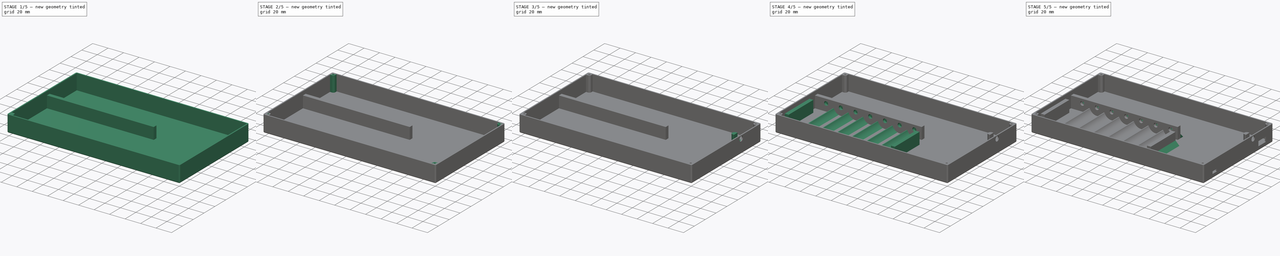
[diagram: build sequence overview — one tinted view per stage of 5, left to right]
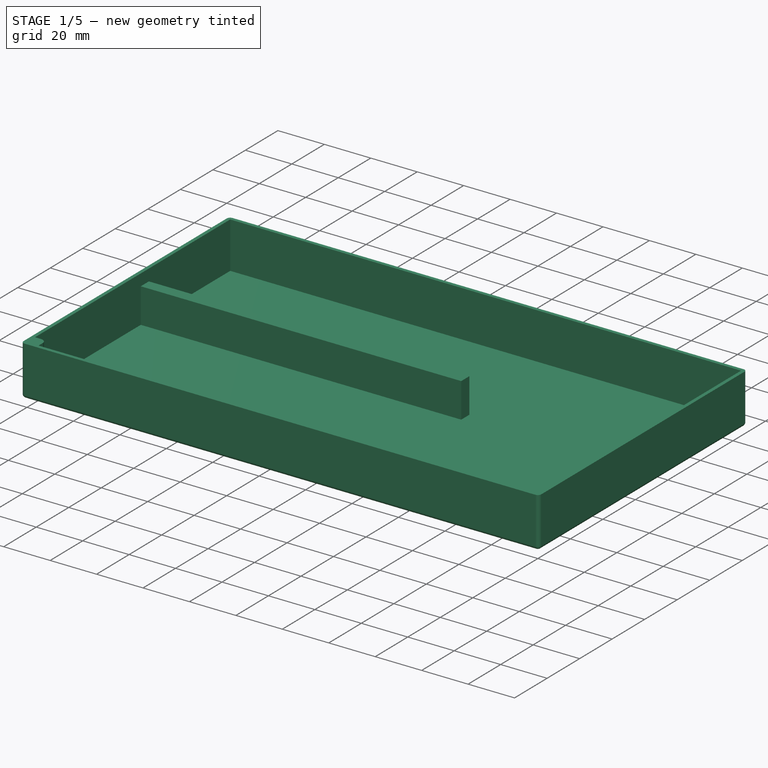
[diagram: stage 1 of 5 — iso view after this stage's code; geometry added in this stage tinted green]
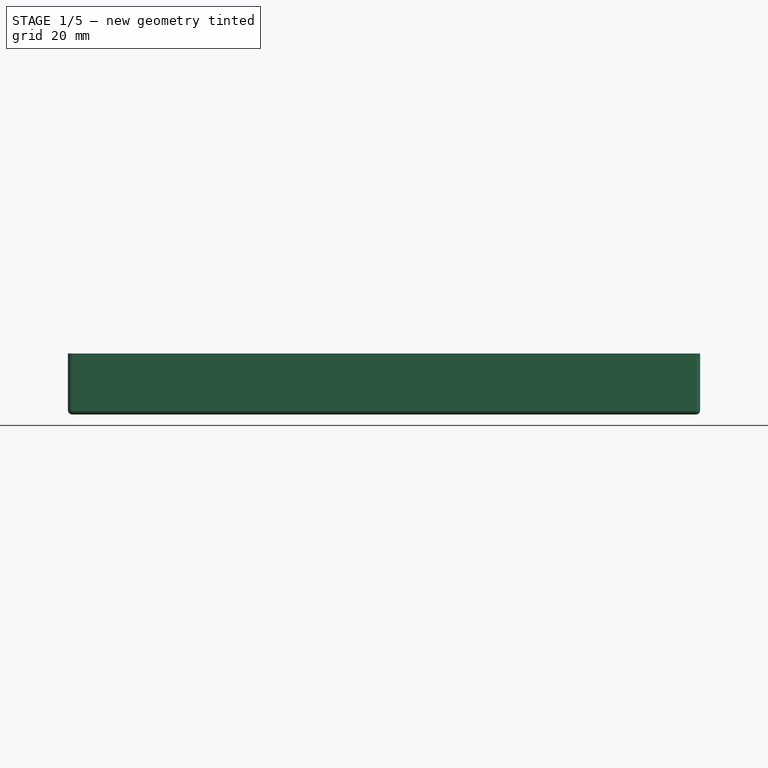
[diagram: stage 1 of 5 — front view after this stage's code; geometry added in this stage tinted green]
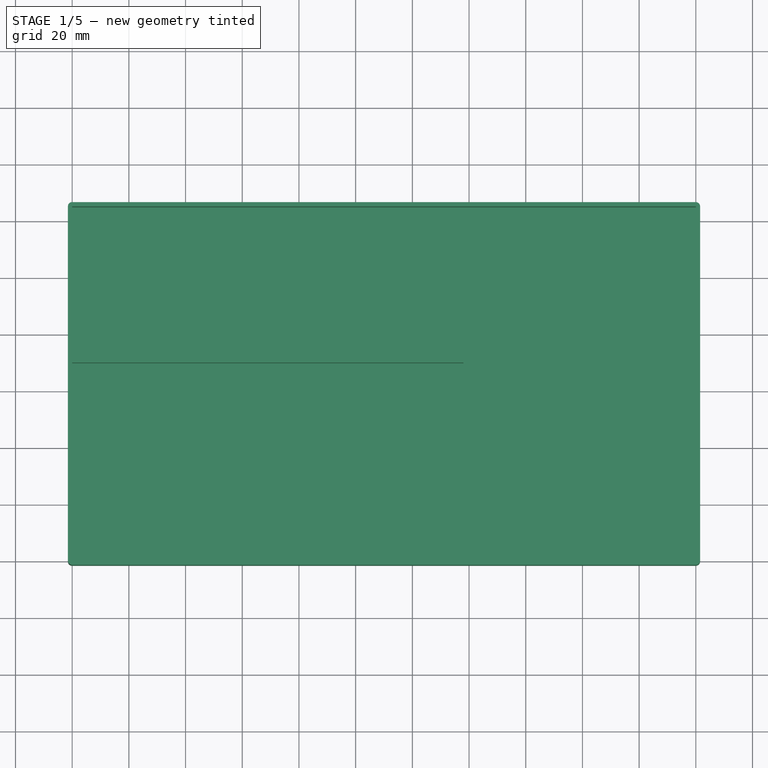
[diagram: stage 1 of 5 — top view after this stage's code; geometry added in this stage tinted green]
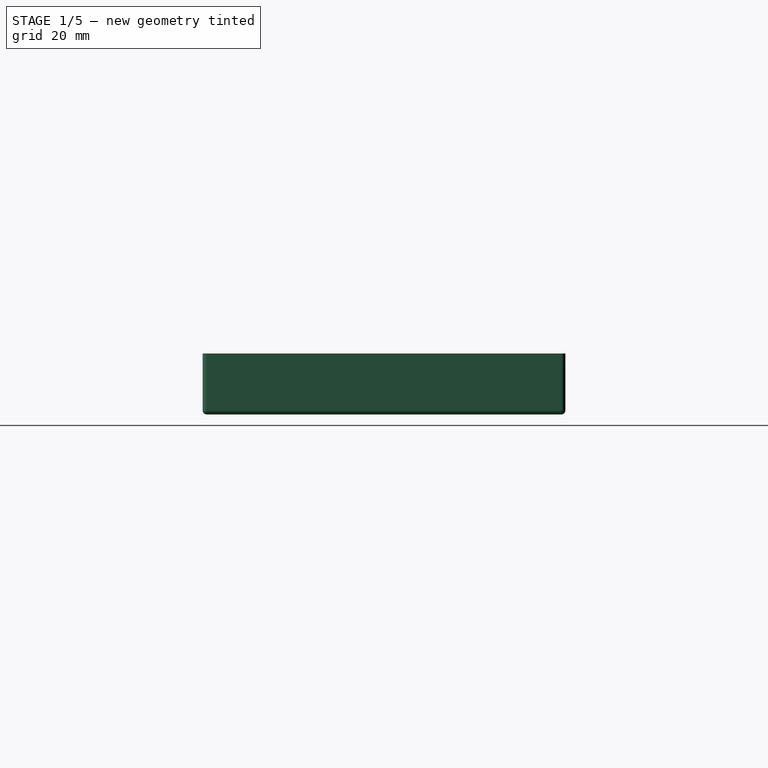
[diagram: stage 1 of 5 — right view after this stage's code; geometry added in this stage tinted green]
FCSTD DOCUMENT  (FreeCAD 0.17R10476 (Git))
Label: EPIC_bottom
License: All rights reserved
LicenseURL: http://en.wikipedia.org/wiki/All_rights_reserved
objects: Sketcher::SketchObject×22, PartDesign::Pad×15, PartDesign::Pocket×7, PartDesign::LinearPattern×7, PartDesign::MultiTransform×2, PartDesign::Chamfer×2, PartDesign::Fillet×1, PartDesign::Body×1
note: 79 computed .brp shape members not serialized (recipe doc carries the construction recipe); baked Part::Feature solids carry a one-line shape summary decoded from their .brp

FEATURE [Sketcher::SketchObject] Sketch
  MapMode = 5
  Support = -> [XY_Plane]
  sketch-geometry (12):
    g0: LineSegment StartX=0 StartY=0 StartZ=0 EndX=220 EndY=0 EndZ=0
    g1: LineSegment StartX=220 StartY=0 StartZ=0 EndX=220 EndY=125 EndZ=0
    g2: LineSegment StartX=220 StartY=125 StartZ=0 EndX=0 EndY=125 EndZ=0
    g3: LineSegment StartX=0 StartY=125 StartZ=0 EndX=0 EndY=0 EndZ=0
    g4: ArcOfCircle CenterX=0 CenterY=0 CenterZ=0 NormalX=0 NormalY=0 NormalZ=1 Radius=1.5 StartAngle=3.14159 EndAngle=4.71239
    g5: LineSegment StartX=0 StartY=-1.5 StartZ=0 EndX=220 EndY=-1.5 EndZ=0
    g6: ArcOfCircle CenterX=220 CenterY=0 CenterZ=0 NormalX=0 NormalY=0 NormalZ=1 Radius=1.5 StartAngle=4.7124 EndAngle=6.28319
    g7: LineSegment StartX=221.5 StartY=0 StartZ=0 EndX=221.5 EndY=125 EndZ=0
    g8: ArcOfCircle CenterX=220 CenterY=125 CenterZ=0 NormalX=0 NormalY=0 NormalZ=1 Radius=1.5 StartAngle=0 EndAngle=1.5708
    g9: LineSegment StartX=220 StartY=126.5 StartZ=0 EndX=0 EndY=126.5 EndZ=0
    g10: ArcOfCircle CenterX=0 CenterY=125 CenterZ=0 NormalX=0 NormalY=0 NormalZ=1 Radius=1.5 StartAngle=1.5708 EndAngle=3.14159
    g11: LineSegment StartX=-1.5 StartY=125 StartZ=0 EndX=-1.5 EndY=0 EndZ=0
  constraints (35):
    c: Coincident(g0,g1)
    c: Coincident(g1,g2)
    c: Coincident(g2,g3)
    c: Coincident(g3,g0)
    c: Horizontal(g0)
    c: Horizontal(g2)
    c: Vertical(g1)
    c: Vertical(g3)
    c: Coincident(g0,g-1)
    c: DistanceX(g2,g2) = 220
    c: DistanceY(g3,g3) = 125
    c: Coincident(g4,g-1)
    c: PointOnObject(g4,g-1)
    c: PointOnObject(g4,g-2)
    c: Coincident(g5,g4)
    c: Horizontal(g5)
    c: Coincident(g6,g0)
    c: Coincident(g6,g5)
    c: Coincident(g7,g6)
    c: Vertical(g7)
    c: Coincident(g8,g1)
    c: Coincident(g8,g7)
    c: Coincident(g9,g8)
    c: Horizontal(g9)
    c: Coincident(g10,g2)
    c: Coincident(g10,g9)
    c: Coincident(g11,g10)
    c: Coincident(g11,g4)
    c: Vertical(g11)
    c: PointOnObject(g10,g2)
    c: PointOnObject(g9,g3)
    c: PointOnObject(g8,g1)
    c: PointOnObject(g7,g2)
    c: PointOnObject(g6,g0)
    c: DistanceY(g5,g0) = 1.5
FEATURE [PartDesign::Pad] Pad
  Length = 20
  Length2 = 100
  Profile = -> Sketch
  Type = 0
FEATURE [Sketcher::SketchObject] Sketch001
  ExternalGeometry = -> [Pad]
  MapMode = 5
  Placement = pos=(0,0,0) rot=(1,0,0;3.14159rad)
  Support = -> [Pad]
  sketch-geometry (8):
    g0: ArcOfCircle CenterX=0 CenterY=-125 CenterZ=0 NormalX=0 NormalY=0 NormalZ=1 Radius=1.5 StartAngle=3.14159 EndAngle=4.71239
    g1: LineSegment StartX=0 StartY=-126.5 StartZ=0 EndX=220 EndY=-126.5 EndZ=0
    g2: ArcOfCircle CenterX=220 CenterY=-125 CenterZ=0 NormalX=0 NormalY=0 NormalZ=1 Radius=1.5 StartAngle=4.71239 EndAngle=6.28319
    g3: LineSegment StartX=221.5 StartY=-125 StartZ=0 EndX=221.5 EndY=0 EndZ=0
    g4: ArcOfCircle CenterX=220 CenterY=0 CenterZ=0 NormalX=0 NormalY=0 NormalZ=1 Radius=1.5 StartAngle=0 EndAngle=1.57079
    g5: LineSegment StartX=220 StartY=1.5 StartZ=0 EndX=0 EndY=1.5 EndZ=0
    g6: ArcOfCircle CenterX=0 CenterY=0 CenterZ=0 NormalX=0 NormalY=0 NormalZ=1 Radius=1.5 StartAngle=1.5708 EndAngle=3.14159
    g7: LineSegment StartX=-1.5 StartY=0 StartZ=0 EndX=-1.5 EndY=-125 EndZ=0
  constraints (20):
    c: Coincident(g0,g-3)
    c: Coincident(g0,g-5)
    c: Coincident(g0,g-4)
    c: Coincident(g1,g0)
    c: Coincident(g1,g-10)
    c: Coincident(g2,g-10)
    c: Coincident(g2,g1)
    c: Coincident(g2,g-10)
    c: Coincident(g3,g2)
    c: Coincident(g3,g-9)
    c: Coincident(g4,g-8)
    c: Coincident(g4,g3)
    c: Coincident(g4,g-8)
    c: Coincident(g5,g4)
    c: Coincident(g5,g-7)
    c: Coincident(g6,g-1)
    c: Coincident(g6,g5)
    c: Coincident(g6,g-6)
    c: Coincident(g7,g6)
    c: Coincident(g7,g0)
FEATURE [PartDesign::Pad] Pad001
  BaseFeature = -> Pad
  Length = 1.5
  Length2 = 100
  Profile = -> Sketch001
  Type = 0
FEATURE [PartDesign::Fillet] Fillet
  Base = -> Pad001 [Face23]
  BaseFeature = -> Pad001
  Radius = 1.5
FEATURE [Sketcher::SketchObject] Sketch002
  MapMode = 5
  Support = -> [Fillet]
  sketch-geometry (4):
    g0: LineSegment StartX=0 StartY=70 StartZ=0 EndX=138 EndY=70 EndZ=0
    g1: LineSegment StartX=138 StartY=70 StartZ=0 EndX=138 EndY=75 EndZ=0
    g2: LineSegment StartX=138 StartY=75 StartZ=0 EndX=0 EndY=75 EndZ=0
    g3: LineSegment StartX=0 StartY=75 StartZ=0 EndX=0 EndY=70 EndZ=0
  constraints (12):
    c: Coincident(g0,g1)
    c: Coincident(g1,g2)
    c: Coincident(g2,g3)
    c: Coincident(g3,g0)
    c: Horizontal(g0)
    c: Horizontal(g2)
    c: Vertical(g1)
    c: Vertical(g3)
    c: PointOnObject(g0,g-2)
    c: DistanceY(g1,g1) = 5
    c: DistanceX(g2,g2) = 138
    c: DistanceY(g-1,g0) = 70
FEATURE [PartDesign::Pad] Pad002
  BaseFeature = -> Fillet
  Length = 15
  Length2 = 100
  Profile = -> Sketch002
  Type = 0
FEATURE [Sketcher::SketchObject] Sketch003
  ExternalGeometry = -> [Pad002]
  MapMode = 5
  Support = -> [Pad002]
  sketch-geometry (4):
    g0: LineSegment StartX=5 StartY=0 StartZ=0 EndX=138 EndY=0 EndZ=0
    g1: LineSegment StartX=138 StartY=0 StartZ=0 EndX=138 EndY=2 EndZ=0
    g2: LineSegment StartX=138 StartY=2 StartZ=0 EndX=5 EndY=2 EndZ=0
    g3: LineSegment StartX=5 StartY=2 StartZ=0 EndX=5 EndY=0 EndZ=0
  constraints (12):
    c: Coincident(g0,g1)
    c: Coincident(g1,g2)
    c: Coincident(g2,g3)
    c: Coincident(g3,g0)
    c: Horizontal(g0)
    c: Horizontal(g2)
    c: Vertical(g1)
    c: Vertical(g3)
    c: PointOnObject(g0,g-3)
    c: DistanceY(g1,g1) = 2
    c: DistanceX(g2,g2) = 133
    c: DistanceX(g1,g-4) = 0
FEATURE [PartDesign::Pad] Pad003
  BaseFeature = -> Pad002
  Length = 15
  Length2 = 100
  Profile = -> Sketch003
  Type = 0
FEATURE [Sketcher::SketchObject] Sketch004
  ExternalGeometry = -> [Pad003]
  MapMode = 5
  Support = -> [Pad003]
  sketch-geometry (5):
    g0: ArcOfCircle CenterX=2.5 CenterY=2.5 CenterZ=0 NormalX=0 NormalY=0 NormalZ=1 Radius=2.5 StartAngle=6.28319 EndAngle=7.85398
    g1: LineSegment StartX=2.5 StartY=5 StartZ=0 EndX=0 EndY=5 EndZ=0
    g2: LineSegment StartX=5 StartY=2.5 StartZ=0 EndX=5 EndY=0 EndZ=0
    g3: LineSegment StartX=0 StartY=0 StartZ=0 EndX=5 EndY=0 EndZ=0
    g4: LineSegment StartX=0 StartY=0 StartZ=0 EndX=0 EndY=5 EndZ=0
  constraints (15):
    c: Coincident(g1,g0)
    c: PointOnObject(g1,g-3)
    c: Horizontal(g1)
    c: Coincident(g2,g0)
    c: PointOnObject(g2,g-1)
    c: Vertical(g2)
    c: Tangent(g0,g1)
    c: Tangent(g2,g0)
    c: Coincident(g3,g-1)
    c: Coincident(g3,g2)
    c: DistanceX(g3,g3) = 5
    c: Coincident(g4,g-1)
    c: Coincident(g4,g1)
    c: DistanceY(g4,g4) = 5
    c: Radius(g0) = 2.5
FEATURE [PartDesign::Pad] Pad004
  BaseFeature = -> Pad003
  Length = 20
  Length2 = 100
  Profile = -> Sketch004
  Type = 0
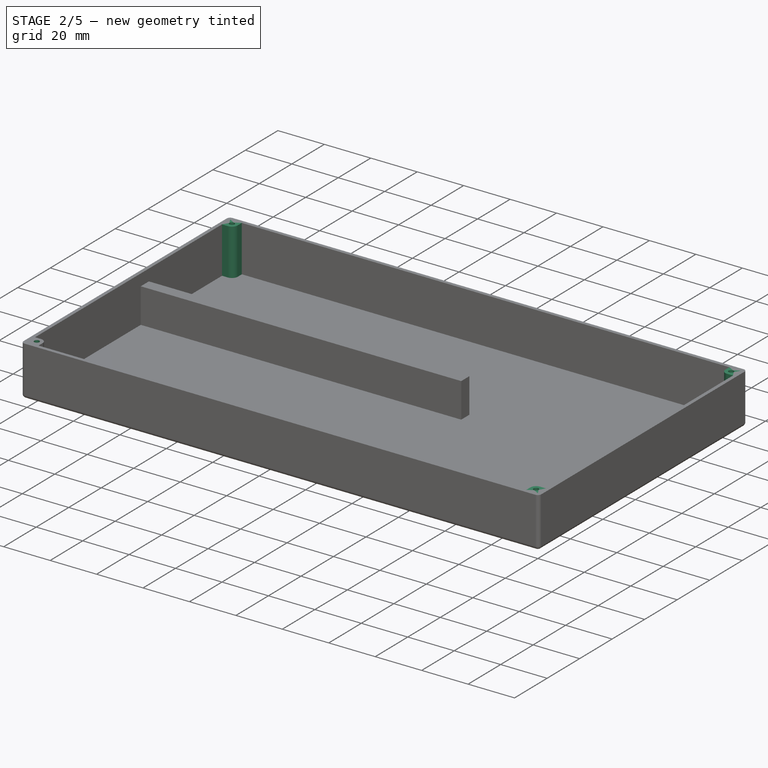
[diagram: stage 2 of 5 — iso view after this stage's code; geometry added in this stage tinted green]
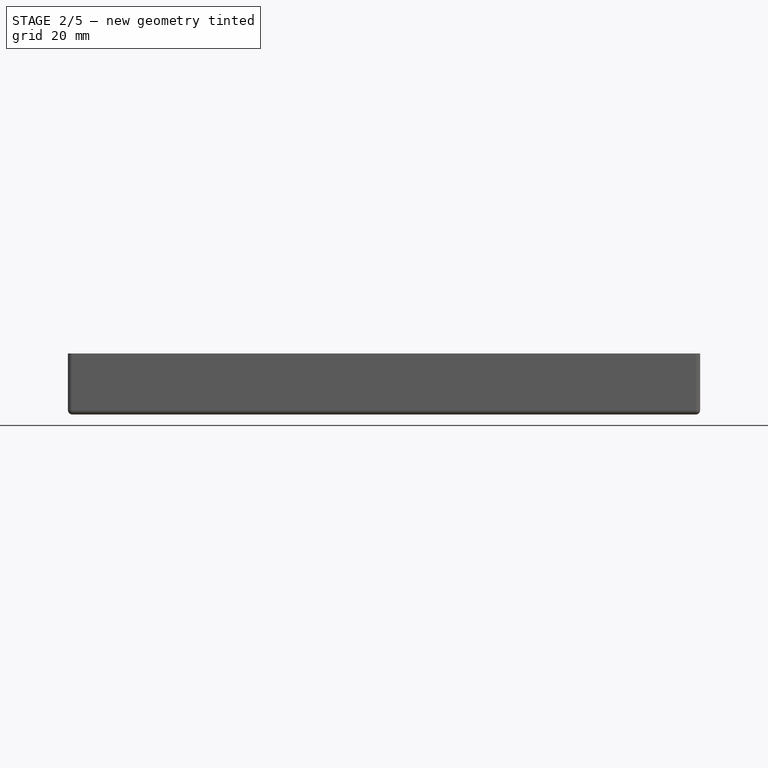
[diagram: stage 2 of 5 — front view after this stage's code; geometry added in this stage tinted green]
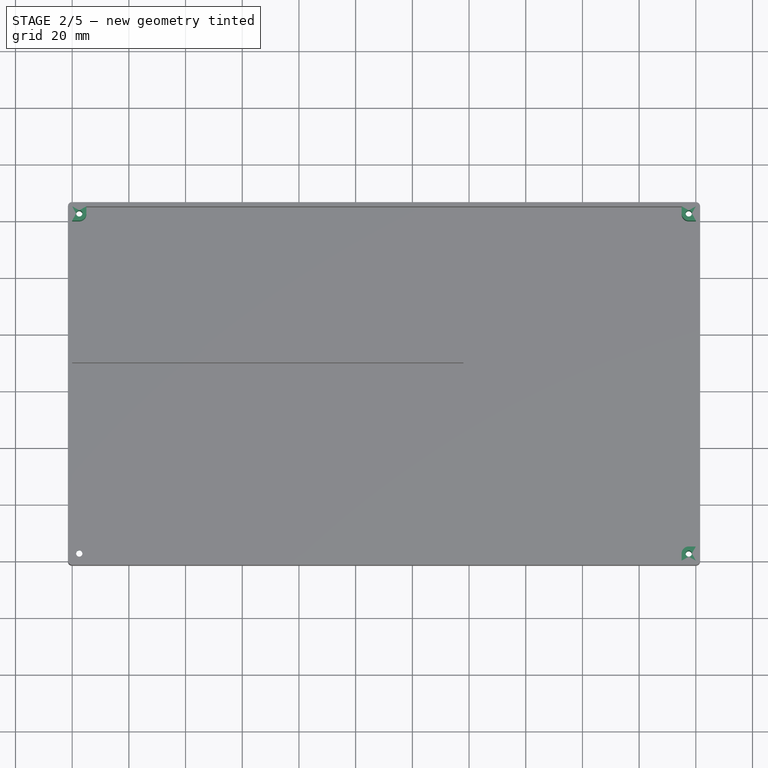
[diagram: stage 2 of 5 — top view after this stage's code; geometry added in this stage tinted green]
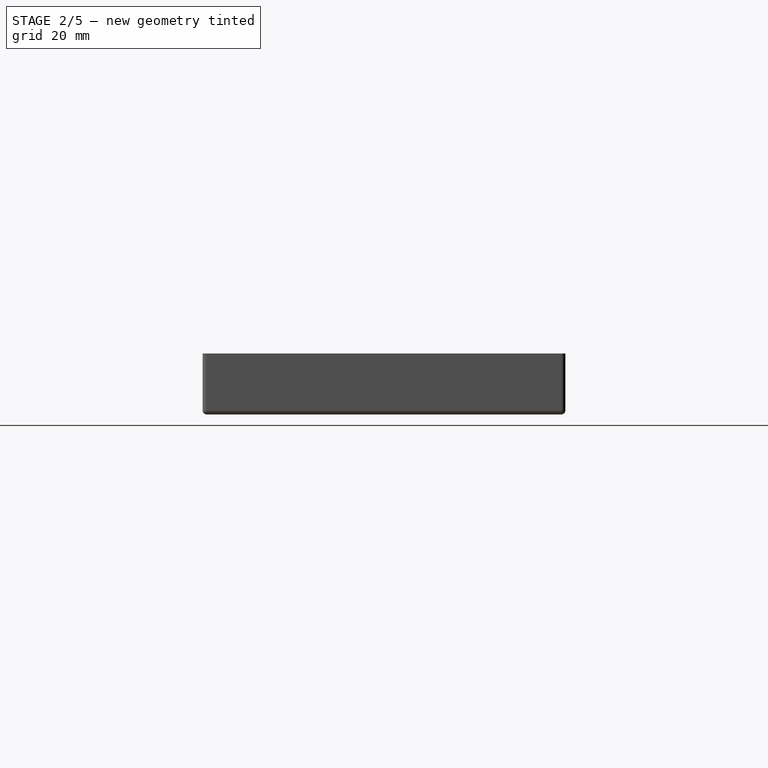
[diagram: stage 2 of 5 — right view after this stage's code; geometry added in this stage tinted green]
FEATURE [Sketcher::SketchObject] Sketch005
  ExternalGeometry = -> [Pad004]
  MapMode = 5
  Support = -> [Pad004]
  sketch-geometry (5):
    g0: LineSegment StartX=220 StartY=0 StartZ=0 EndX=220 EndY=5 EndZ=0
    g1: LineSegment StartX=220 StartY=0 StartZ=0 EndX=215 EndY=0 EndZ=0
    g2: LineSegment StartX=215 StartY=0 StartZ=0 EndX=215 EndY=2.50001 EndZ=0
    g3: LineSegment StartX=220 StartY=5 StartZ=0 EndX=217.5 EndY=5 EndZ=0
    g4: ArcOfCircle CenterX=217.5 CenterY=2.5 CenterZ=0 NormalX=0 NormalY=0 NormalZ=1 Radius=2.5 StartAngle=1.5708 EndAngle=3.14159
  constraints (15):
    c: Coincident(g0,g-3)
    c: Vertical(g0)
    c: Coincident(g1,g0)
    c: Horizontal(g1)
    c: Coincident(g2,g1)
    c: Vertical(g2)
    c: Coincident(g3,g0)
    c: Horizontal(g3)
    c: Coincident(g4,g3)
    c: Coincident(g4,g2)
    c: Tangent(g2,g4)
    c: Tangent(g3,g4)
    c: DistanceX(g1,g1) = 5
    c: DistanceY(g0,g0) = 5
    c: Radius(g4) = 2.5
FEATURE [PartDesign::Pad] Pad005
  BaseFeature = -> Pad004
  Length = 20
  Length2 = 100
  Profile = -> Sketch005
  Type = 0
FEATURE [Sketcher::SketchObject] Sketch006
  ExternalGeometry = -> [Pad005]
  MapMode = 5
  Support = -> [Pad005]
  sketch-geometry (5):
    g0: LineSegment StartX=220 StartY=125 StartZ=0 EndX=215 EndY=125 EndZ=0
    g1: LineSegment StartX=220 StartY=125 StartZ=0 EndX=220 EndY=120 EndZ=0
    g2: LineSegment StartX=215 StartY=125 StartZ=0 EndX=215 EndY=122.5 EndZ=0
    g3: LineSegment StartX=220 StartY=120 StartZ=0 EndX=217.5 EndY=120 EndZ=0
    g4: ArcOfCircle CenterX=217.5 CenterY=122.5 CenterZ=0 NormalX=0 NormalY=0 NormalZ=1 Radius=2.5 StartAngle=3.14159 EndAngle=4.71239
  constraints (15):
    c: Coincident(g0,g-3)
    c: Horizontal(g0)
    c: Coincident(g1,g0)
    c: Vertical(g1)
    c: Coincident(g2,g0)
    c: Vertical(g2)
    c: Coincident(g3,g1)
    c: Horizontal(g3)
    c: Coincident(g4,g2)
    c: Coincident(g4,g3)
    c: Tangent(g4,g3)
    c: Tangent(g4,g2)
    c: DistanceY(g1,g1) = 5
    c: DistanceX(g0,g0) = 5
    c: Radius(g4) = 2.5
FEATURE [PartDesign::Pad] Pad006
  BaseFeature = -> Pad005
  Length = 20
  Length2 = 100
  Profile = -> Sketch006
  Type = 0
FEATURE [Sketcher::SketchObject] Sketch007
  ExternalGeometry = -> [Pad006]
  MapMode = 5
  Support = -> [Pad006]
  sketch-geometry (5):
    g0: LineSegment StartX=0 StartY=125 StartZ=0 EndX=5 EndY=125 EndZ=0
    g1: LineSegment StartX=0 StartY=125 StartZ=0 EndX=0 EndY=120 EndZ=0
    g2: LineSegment StartX=5 StartY=125 StartZ=0 EndX=5 EndY=122.5 EndZ=0
    g3: LineSegment StartX=0 StartY=120 StartZ=0 EndX=2.50001 EndY=120 EndZ=0
    g4: ArcOfCircle CenterX=2.5 CenterY=122.5 CenterZ=0 NormalX=0 NormalY=0 NormalZ=1 Radius=2.5 StartAngle=4.71239 EndAngle=6.28318
  constraints (15):
    c: Coincident(g0,g-3)
    c: Horizontal(g0)
    c: Coincident(g1,g0)
    c: Vertical(g1)
    c: DistanceY(g1,g1) = 5
    c: DistanceX(g0,g0) = 5
    c: Coincident(g2,g0)
    c: Vertical(g2)
    c: Coincident(g3,g1)
    c: Horizontal(g3)
    c: Coincident(g4,g3)
    c: Coincident(g4,g2)
    c: Tangent(g4,g2)
    c: Tangent(g4,g3)
    c: Radius(g4) = 2.5
FEATURE [PartDesign::Pad] Pad007
  BaseFeature = -> Pad006
  Length = 20
  Length2 = 100
  Profile = -> Sketch007
  Type = 0
FEATURE [Sketcher::SketchObject] Sketch008
  ExternalGeometry = -> [Pad007]
  MapMode = 5
  Placement = pos=(0,0,-1.5) rot=(1,0,0;3.14159rad)
  Support = -> [Pad007]
  sketch-geometry (3):
    g0: Circle CenterX=2.5 CenterY=-122.5 CenterZ=0 NormalX=0 NormalY=0 NormalZ=1 Radius=1.1
    g1: LineSegment [constr] StartX=-1e-06 StartY=-122.5 StartZ=0 EndX=2.5 EndY=-122.5 EndZ=0
    g2: LineSegment [constr] StartX=2.5 StartY=-122.5 StartZ=0 EndX=2.5 EndY=-125 EndZ=0
  constraints (9):
    c: PointOnObject(g1,g-4)
    c: Coincident(g1,g0)
    c: Horizontal(g1)
    c: Coincident(g2,g0)
    c: PointOnObject(g2,g-3)
    c: Vertical(g2)
    c: Equal(g2,g1)
    c: Radius(g0) = 1.1
    c: DistanceY(g2,g2) = 2.5
FEATURE [PartDesign::Pocket] Pocket
  BaseFeature = -> Pad007
  Length = 5
  Profile = -> Sketch008
  Type = 1
FEATURE [PartDesign::LinearPattern] LinearPattern
  Direction = -> Sketch008 [H_Axis]
  Length = 215
  Occurrences = 2
FEATURE [PartDesign::LinearPattern] LinearPattern001
  Direction = -> Sketch008 [V_Axis]
  Length = 120
  Occurrences = 2
FEATURE [PartDesign::MultiTransform] MultiTransform
  BaseFeature = -> Pocket
  Originals = -> [Pocket]
  Transformations = -> [LinearPattern,LinearPattern001]
FEATURE [Sketcher::SketchObject] Sketch009
  ExternalGeometry = -> [MultiTransform]
  MapMode = 5
  Placement = pos=(0,0,-1.5) rot=(1,0,0;3.14159rad)
  Support = -> [MultiTransform]
  sketch-geometry (1):
    g0: Circle CenterX=2.5 CenterY=-2.5 CenterZ=0 NormalX=0 NormalY=0 NormalZ=1 Radius=2.1
  constraints (2):
    c: Coincident(g0,g-3)
    c: Radius(g0) = 2.1
FEATURE [PartDesign::Pocket] Pocket001
  BaseFeature = -> MultiTransform
  Length = 18.5
  Profile = -> Sketch009
  Type = 0
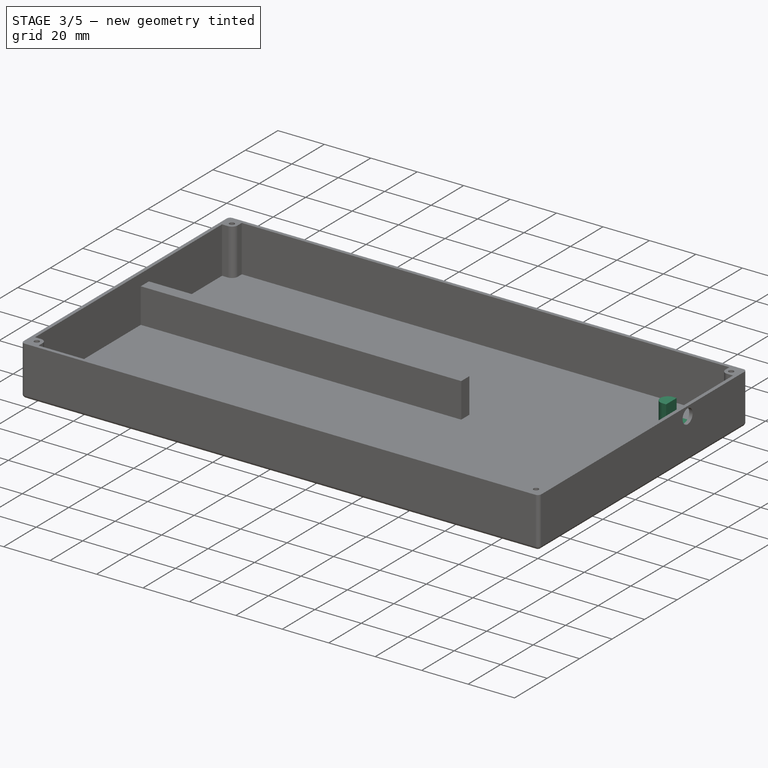
[diagram: stage 3 of 5 — iso view after this stage's code; geometry added in this stage tinted green]
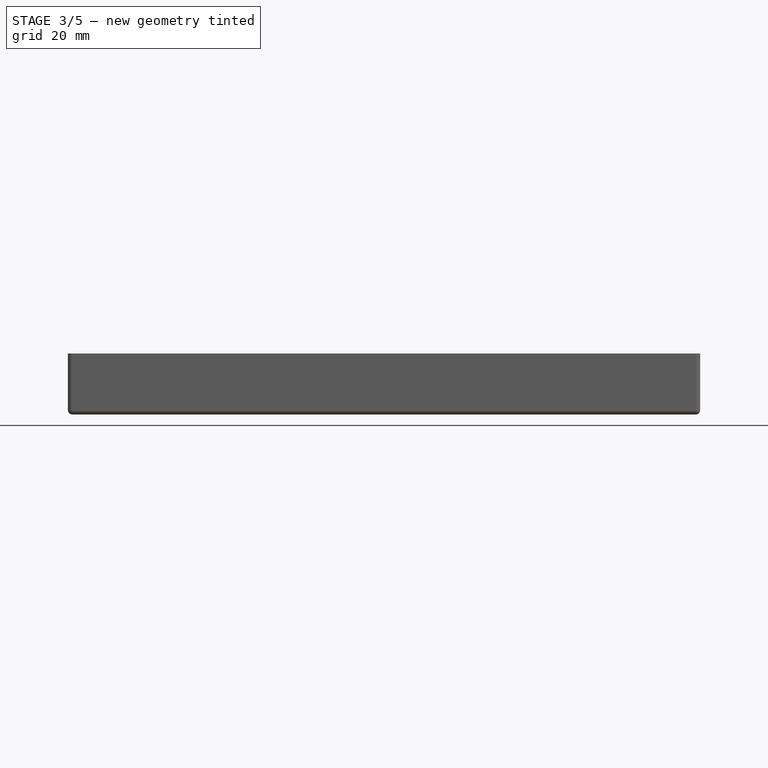
[diagram: stage 3 of 5 — front view after this stage's code; geometry added in this stage tinted green]
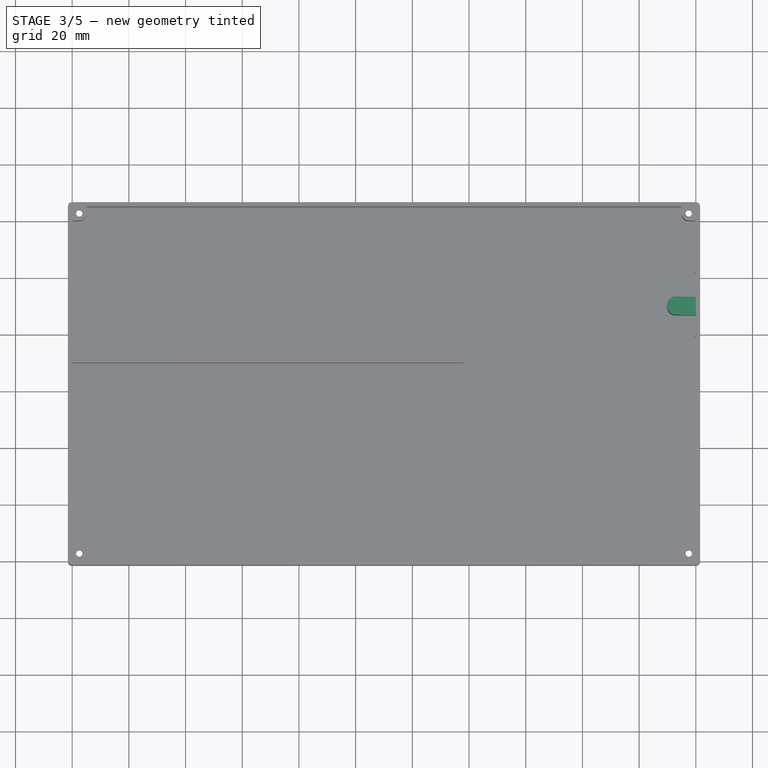
[diagram: stage 3 of 5 — top view after this stage's code; geometry added in this stage tinted green]
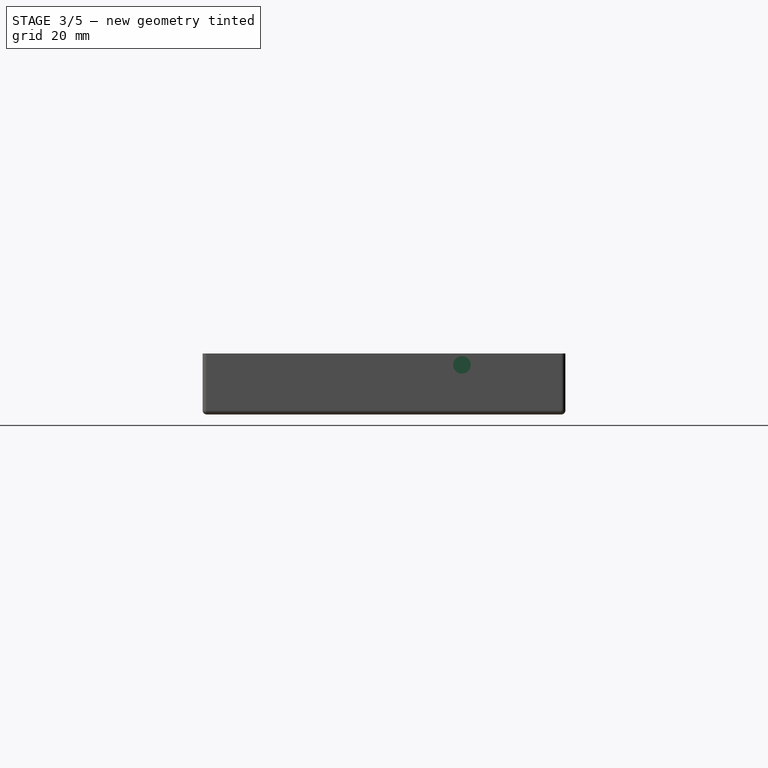
[diagram: stage 3 of 5 — right view after this stage's code; geometry added in this stage tinted green]
FEATURE [PartDesign::LinearPattern] LinearPattern002
  Direction = -> Sketch009 [H_Axis]
  Length = 215
  Occurrences = 2
FEATURE [PartDesign::LinearPattern] LinearPattern003
  Direction = -> Sketch009 [V_Axis]
  Length = 120
  Occurrences = 2
  Reversed = true
FEATURE [PartDesign::MultiTransform] MultiTransform001
  BaseFeature = -> Pocket001
  Originals = -> [Pocket001]
  Transformations = -> [LinearPattern002,LinearPattern003]
FEATURE [Sketcher::SketchObject] Sketch010
  ExternalGeometry = -> [MultiTransform001]
  MapMode = 5
  Placement = pos=(220,0,0) rot=(0.57735,-0.57735,-0.57735;2.0944rad)
  Support = -> [MultiTransform001]
  sketch-geometry (3):
    g0: Circle CenterX=-90 CenterY=16 CenterZ=0 NormalX=0 NormalY=0 NormalZ=1 Radius=3.1
    g1: LineSegment [constr] StartX=-90 StartY=0 StartZ=0 EndX=-90 EndY=16 EndZ=0
    g2: LineSegment [constr] StartX=-120 StartY=16 StartZ=0 EndX=-90 EndY=16 EndZ=0
  constraints (9):
    c: Radius(g0) = 3.1
    c: PointOnObject(g1,g-1)
    c: Coincident(g1,g0)
    c: Vertical(g1)
    c: PointOnObject(g2,g-3)
    c: Coincident(g2,g0)
    c: Horizontal(g2)
    c: DistanceY(g1,g1) = 16
    c: DistanceX(g2,g2) = 30
FEATURE [PartDesign::Pocket] Pocket002
  BaseFeature = -> MultiTransform001
  Length = 5
  Profile = -> Sketch010
  Type = 2
FEATURE [Sketcher::SketchObject] Sketch011
  ExternalGeometry = -> [Pocket002]
  MapMode = 5
  Support = -> [Pocket002]
  sketch-geometry (5):
    g0: LineSegment StartX=220 StartY=93.25 StartZ=0 EndX=213 EndY=93.25 EndZ=0
    g1: LineSegment StartX=213 StartY=93.25 StartZ=0 EndX=213 EndY=86.75 EndZ=0
    g2: LineSegment StartX=213 StartY=86.75 StartZ=0 EndX=220 EndY=86.75 EndZ=0
    g3: LineSegment [constr] StartX=220 StartY=86.75 StartZ=0 EndX=220 EndY=93.25 EndZ=0
    g4: LineSegment StartX=220 StartY=93.25 StartZ=0 EndX=220 EndY=86.75 EndZ=0
  constraints (14):
    c: Coincident(g0,g1)
    c: Coincident(g1,g2)
    c: Coincident(g2,g3)
    c: Coincident(g3,g0)
    c: Horizontal(g0)
    c: Horizontal(g2)
    c: Vertical(g1)
    c: Vertical(g3)
    c: PointOnObject(g0,g-4)
    c: DistanceY(g0,g-4) = 26.75
    c: DistanceY(g1,g1) = 6.5
    c: DistanceX(g2,g2) = 7
    c: Coincident(g4,g0)
    c: Coincident(g4,g2)
FEATURE [PartDesign::Pad] Pad008
  BaseFeature = -> Pocket002
  Length = 12.9
  Length2 = 100
  Profile = -> Sketch011
  Type = 0
FEATURE [Sketcher::SketchObject] Sketch012
  ExternalGeometry = -> [Pad008]
  MapMode = 5
  Placement = pos=(0,0,12.9) rot=(0,0,1;0rad)
  Support = -> [Pad008]
  sketch-geometry (4):
    g0: LineSegment StartX=213 StartY=93.25 StartZ=0 EndX=214.5 EndY=93.25 EndZ=0
    g1: LineSegment StartX=214.5 StartY=93.25 StartZ=0 EndX=214.5 EndY=86.75 EndZ=0
    g2: LineSegment StartX=214.5 StartY=86.75 StartZ=0 EndX=213 EndY=86.75 EndZ=0
    g3: LineSegment StartX=213 StartY=86.75 StartZ=0 EndX=213 EndY=93.25 EndZ=0
  constraints (11):
    c: Coincident(g0,g1)
    c: Coincident(g1,g2)
    c: Coincident(g2,g3)
    c: Coincident(g3,g0)
    c: Horizontal(g0)
    c: Horizontal(g2)
    c: Vertical(g1)
    c: Vertical(g3)
    c: Coincident(g0,g-3)
    c: PointOnObject(g1,g-4)
    c: DistanceX(g0,g0) = 1.5
FEATURE [PartDesign::Pad] Pad009
  BaseFeature = -> Pad008
  Length = 7.1
  Length2 = 100
  Profile = -> Sketch012
  Type = 0
FEATURE [Sketcher::SketchObject] Sketch013
  ExternalGeometry = -> [Pad009]
  MapMode = 5
  Support = -> [Pad009]
  sketch-geometry (2):
    g0: ArcOfCircle CenterX=213 CenterY=90 CenterZ=0 NormalX=0 NormalY=0 NormalZ=1 Radius=3.25 StartAngle=1.5708 EndAngle=4.71239
    g1: LineSegment StartX=213 StartY=93.25 StartZ=0 EndX=213 EndY=86.75 EndZ=0
  constraints (5):
    c: PointOnObject(g0,g-3)
    c: Coincident(g0,g-3)
    c: Coincident(g0,g-3)
    c: Coincident(g1,g0)
    c: Coincident(g1,g0)
FEATURE [PartDesign::Pad] Pad010
  BaseFeature = -> Pad009
  Length = 20
  Length2 = 100
  Profile = -> Sketch013
  Type = 0
FEATURE [Sketcher::SketchObject] Sketch014
  ExternalGeometry = -> [Pad010]
  MapMode = 5
  Placement = pos=(220,0,0) rot=(0.57735,-0.57735,-0.57735;2.0944rad)
  Support = -> [Pad010]
  sketch-geometry (2):
    g0: Circle CenterX=-78.59 CenterY=16 CenterZ=0 NormalX=0 NormalY=0 NormalZ=1 Radius=0.45
    g1: Circle CenterX=-101.41 CenterY=16 CenterZ=0 NormalX=0 NormalY=0 NormalZ=1 Radius=0.45
  constraints (6):
    c: DistanceX(g-3,g0) = 11.41
    c: DistanceX(g1,g-3) = 11.41
    c: Equal(g0,g1)
    c: Radius(g1) = 0.45
    c: DistanceY(g0,g1) = 0
    c: DistanceY(g0,g-3) = 0
FEATURE [PartDesign::Pad] Pad011
  BaseFeature = -> Pad010
  Length = 0.5
  Length2 = 100
  Profile = -> Sketch014
  Type = 0
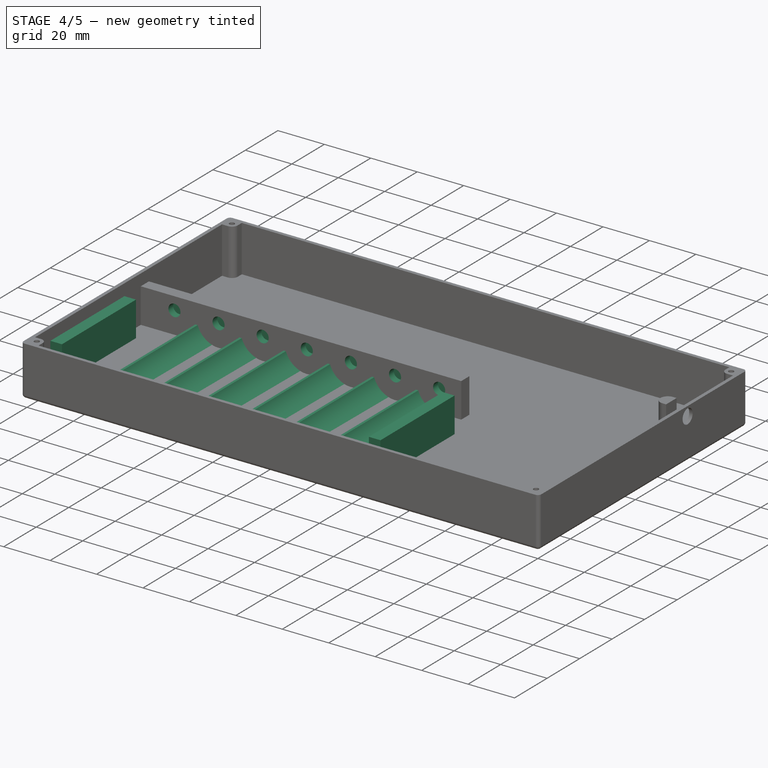
[diagram: stage 4 of 5 — iso view after this stage's code; geometry added in this stage tinted green]
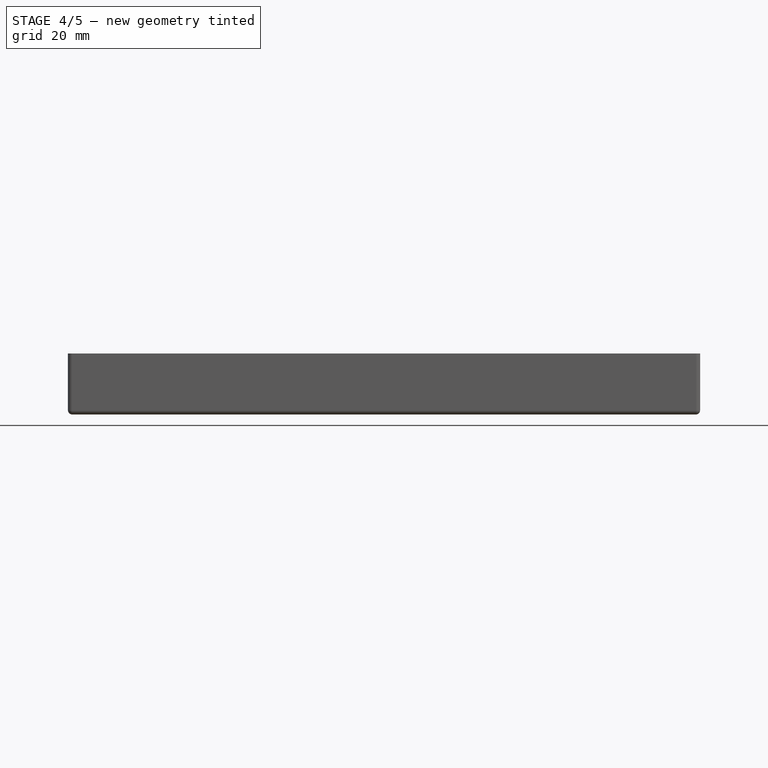
[diagram: stage 4 of 5 — front view after this stage's code; geometry added in this stage tinted green]
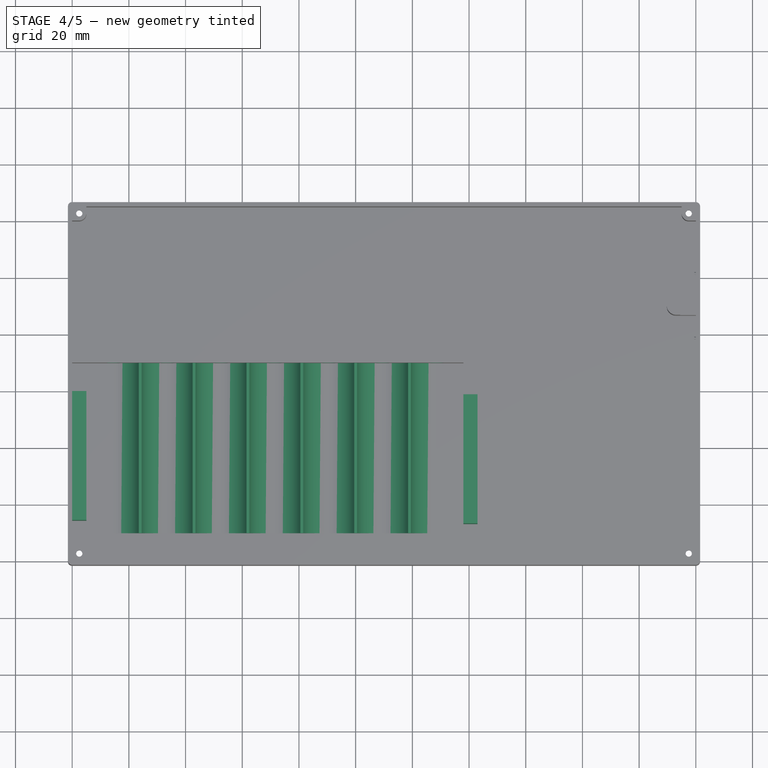
[diagram: stage 4 of 5 — top view after this stage's code; geometry added in this stage tinted green]
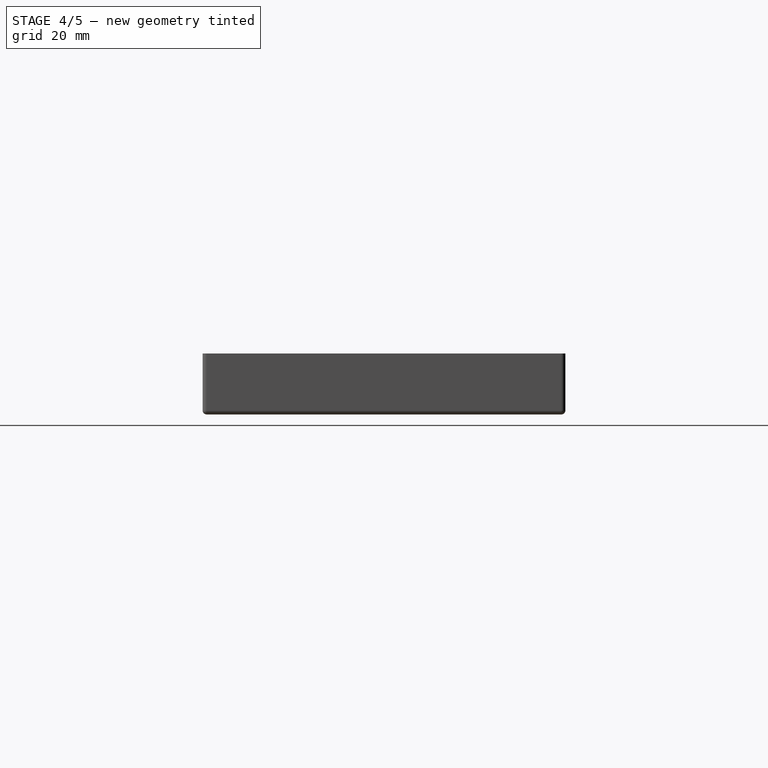
[diagram: stage 4 of 5 — right view after this stage's code; geometry added in this stage tinted green]
FEATURE [Sketcher::SketchObject] Sketch015
  ExternalGeometry = -> [Pad011]
  MapMode = 5
  Support = -> [Pad011]
  sketch-geometry (6):
    g0: LineSegment StartX=0 StartY=14.4053 StartZ=0 EndX=5 EndY=14.4053 EndZ=0
    g1: LineSegment StartX=5 StartY=14.4053 StartZ=0 EndX=5 EndY=59.95 EndZ=0
    g2: LineSegment StartX=5 StartY=59.95 StartZ=0 EndX=0 EndY=59.95 EndZ=0
    g3: LineSegment StartX=0 StartY=59.95 StartZ=0 EndX=0 EndY=14.4053 EndZ=0
    g4: LineSegment [constr] StartX=0 StartY=4.35531 StartZ=0 EndX=5 EndY=14.4053 EndZ=0
    g5: LineSegment [constr] StartX=5 StartY=59.95 StartZ=0 EndX=0 EndY=70 EndZ=0
  constraints (15):
    c: Coincident(g0,g1)
    c: Coincident(g1,g2)
    c: Coincident(g2,g3)
    c: Coincident(g3,g0)
    c: Horizontal(g0)
    c: Horizontal(g2)
    c: Vertical(g1)
    c: Vertical(g3)
    c: PointOnObject(g0,g-3)
    c: DistanceX(g2,g2) = 5
    c: PointOnObject(g4,g-2)
    c: Coincident(g4,g0)
    c: Coincident(g5,g1)
    c: Coincident(g5,g-5)
    c: Equal(g4,g5)
FEATURE [PartDesign::Pad] Pad012
  BaseFeature = -> Pad011
  Length = 15
  Length2 = 100
  Profile = -> Sketch015
  Type = 0
FEATURE [Sketcher::SketchObject] Sketch016
  ExternalGeometry = -> [Pad012]
  MapMode = 5
  Support = -> [Pad012]
  sketch-geometry (6):
    g0: LineSegment StartX=138 StartY=13.2277 StartZ=0 EndX=143 EndY=13.2277 EndZ=0
    g1: LineSegment StartX=143 StartY=13.2277 StartZ=0 EndX=143 EndY=58.7723 EndZ=0
    g2: LineSegment StartX=143 StartY=58.7723 StartZ=0 EndX=138 EndY=58.7723 EndZ=0
    g3: LineSegment StartX=138 StartY=58.7723 StartZ=0 EndX=138 EndY=13.2277 EndZ=0
    g4: LineSegment [constr] StartX=138 StartY=70 StartZ=0 EndX=138 EndY=58.7723 EndZ=0
    g5: LineSegment [constr] StartX=138 StartY=13.2277 StartZ=0 EndX=138 EndY=2 EndZ=0
  constraints (16):
    c: Coincident(g0,g1)
    c: Coincident(g1,g2)
    c: Coincident(g2,g3)
    c: Coincident(g3,g0)
    c: Horizontal(g0)
    c: Horizontal(g2)
    c: Vertical(g1)
    c: Vertical(g3)
    c: DistanceX(g2,g2) = 5
    c: Coincident(g4,g-3)
    c: Coincident(g4,g2)
    c: Coincident(g5,g0)
    c: Coincident(g5,g-4)
    c: Equal(g5,g4)
    c: Equal(g-5,g3)
    c: DistanceX(g4,g2) = 0
FEATURE [PartDesign::Pad] Pad013
  BaseFeature = -> Pad012
  Length = 15
  Length2 = 100
  Profile = -> Sketch016
  Type = 0
FEATURE [Sketcher::SketchObject] Sketch017
  ExternalGeometry = -> [Pad013]
  MapMode = 5
  Placement = pos=(0,70,0) rot=(1,0,0;1.5708rad)
  Support = -> [Pad013]
  sketch-geometry (4):
    g0: LineSegment StartX=14.5 StartY=0 StartZ=0 EndX=33.5 EndY=0 EndZ=0
    g1: ArcOfCircle CenterX=14.5 CenterY=9.5 CenterZ=0 NormalX=0 NormalY=0 NormalZ=1 Radius=9.5 StartAngle=4.71239 EndAngle=5.9573
    g2: ArcOfCircle CenterX=33.5 CenterY=9.5 CenterZ=0 NormalX=0 NormalY=0 NormalZ=1 Radius=9.5 StartAngle=3.46748 EndAngle=4.71239
    g3: LineSegment StartX=23.5 StartY=6.45862 StartZ=0 EndX=24.5 EndY=6.45862 EndZ=0
  constraints (14):
    c: Horizontal(g0)
    c: Coincident(g1,g0)
    c: Coincident(g2,g0)
    c: Coincident(g3,g1)
    c: Coincident(g3,g2)
    c: Horizontal(g3)
    c: DistanceX(g0,g0) = 19
    c: Radius(g2) = 9.5
    c: Radius(g1) = 9.5
    c: DistanceX(g0,g1) = 0
    c: DistanceX(g0,g2) = 0
    c: PointOnObject(g0,g-1)
    c: DistanceX(g3,g3) = 1
    c: DistanceX(g-3,g0) = 9.5
FEATURE [PartDesign::Pad] Pad014
  BaseFeature = -> Pad013
  Length = 60
  Length2 = 100
  Profile = -> Sketch017
  Type = 0
FEATURE [PartDesign::LinearPattern] LinearPattern004
  BaseFeature = -> Pad014
  Direction = -> Sketch017 [H_Axis]
  Length = 95
  Occurrences = 6
  Originals = -> [Pad014]
FEATURE [Sketcher::SketchObject] Sketch018
  ExternalGeometry = -> [LinearPattern004]
  MapMode = 5
  Placement = pos=(0,70,0) rot=(1,0,0;1.5708rad)
  Support = -> [LinearPattern004]
  sketch-geometry (1):
    g0: Circle CenterX=14.5 CenterY=9.5 CenterZ=0 NormalX=0 NormalY=0 NormalZ=1 Radius=2.6
  constraints (2):
    c: Coincident(g0,g-3)
    c: Radius(g0) = 2.6
FEATURE [PartDesign::Pocket] Pocket003
  BaseFeature = -> LinearPattern004
  Length = 3
  Profile = -> Sketch018
  Type = 0
FEATURE [PartDesign::LinearPattern] LinearPattern005
  BaseFeature = -> Pocket003
  Direction = -> Sketch018 [H_Axis]
  Length = 114
  Occurrences = 7
  Originals = -> [Pocket003]
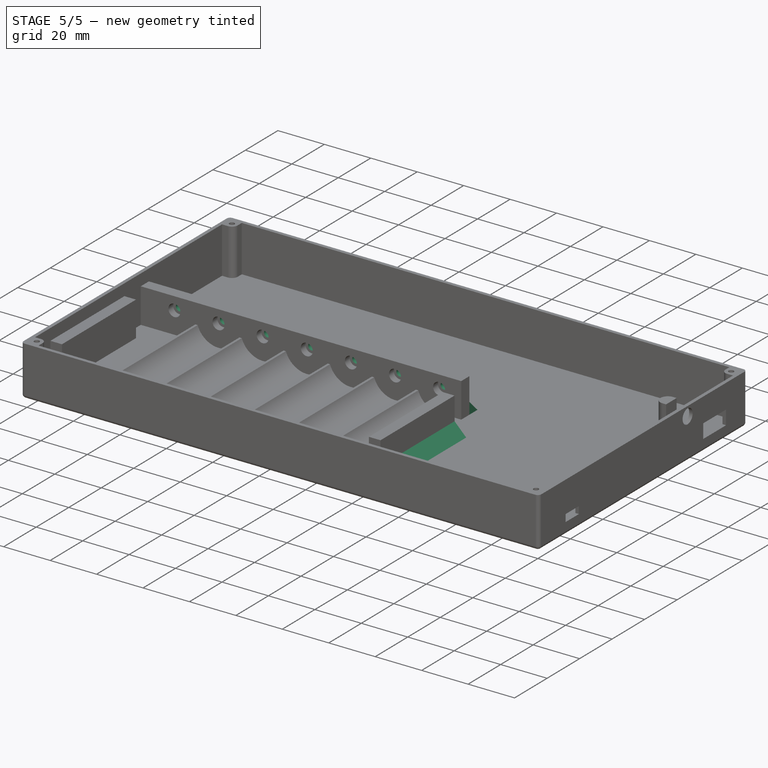
[diagram: stage 5 of 5 — iso view after this stage's code; geometry added in this stage tinted green]
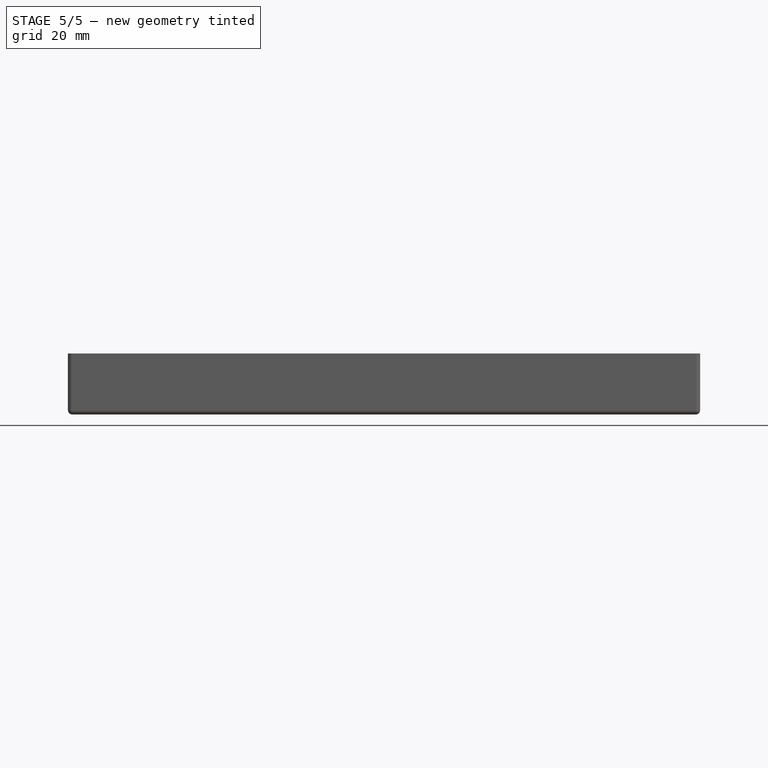
[diagram: stage 5 of 5 — front view after this stage's code; geometry added in this stage tinted green]
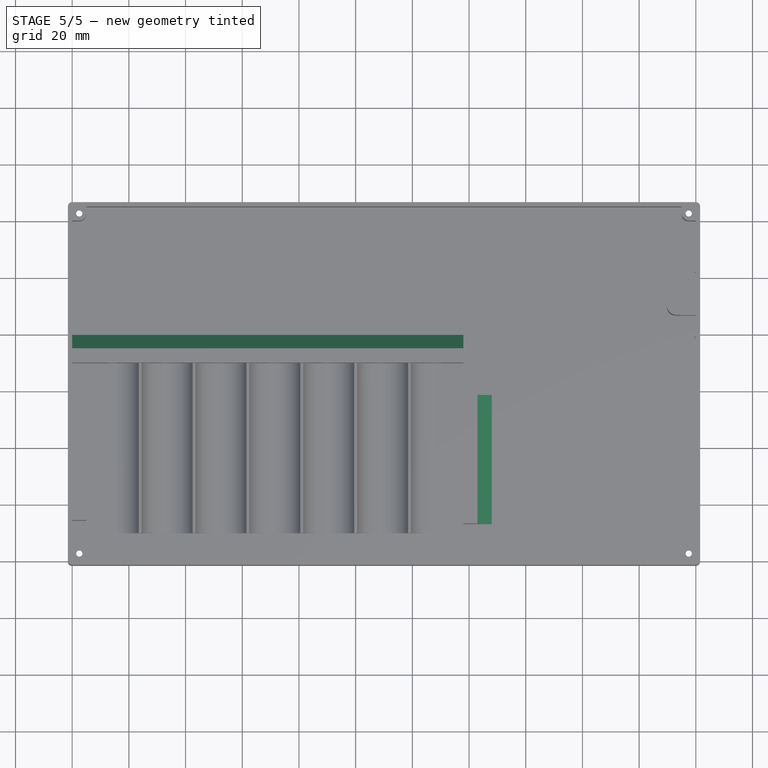
[diagram: stage 5 of 5 — top view after this stage's code; geometry added in this stage tinted green]
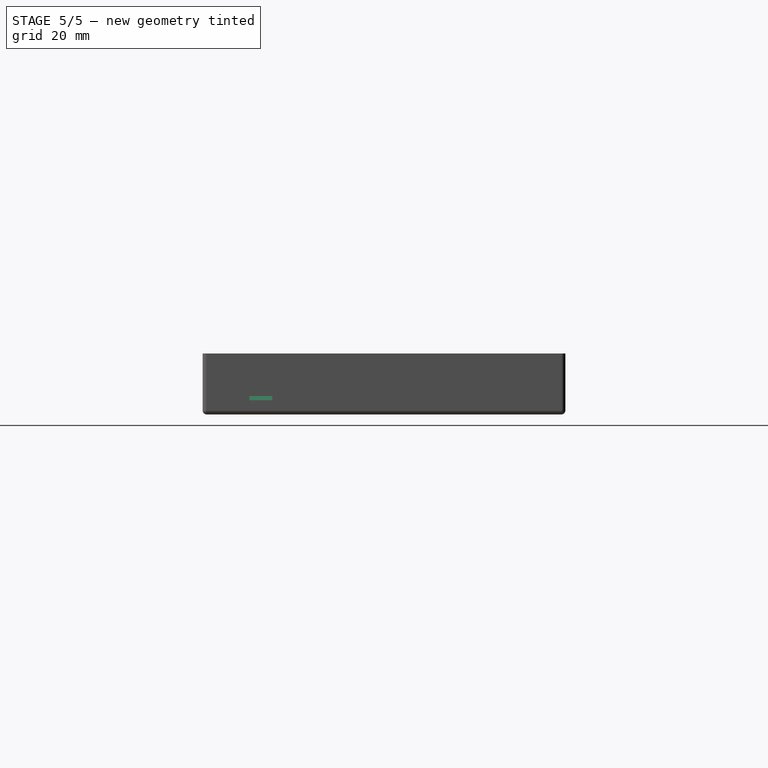
[diagram: stage 5 of 5 — right view after this stage's code; geometry added in this stage tinted green]
FEATURE [Sketcher::SketchObject] Sketch019
  ExternalGeometry = -> [LinearPattern005]
  MapMode = 5
  Placement = pos=(0,70,0) rot=(1,0,0;1.5708rad)
  Support = -> [LinearPattern005]
  sketch-geometry (1):
    g0: Circle CenterX=14.5 CenterY=9.5 CenterZ=0 NormalX=0 NormalY=0 NormalZ=1 Radius=1.5
  constraints (2):
    c: Coincident(g0,g-3)
    c: Radius(g0) = 1.5
FEATURE [PartDesign::Pocket] Pocket004
  BaseFeature = -> LinearPattern005
  Length = 5
  Profile = -> Sketch019
  Type = 0
FEATURE [PartDesign::LinearPattern] LinearPattern006
  BaseFeature = -> Pocket004
  Direction = -> Sketch019 [H_Axis]
  Length = 114
  Occurrences = 7
  Originals = -> [Pocket004]
FEATURE [Sketcher::SketchObject] Sketch020
  ExternalGeometry = -> [LinearPattern006]
  MapMode = 5
  Placement = pos=(220,0,0) rot=(0.57735,-0.57735,-0.57735;2.0944rad)
  Support = -> [LinearPattern006]
  sketch-geometry (5):
    g0: LineSegment StartX=-15 StartY=3.5 StartZ=0 EndX=-23.1 EndY=3.5 EndZ=0
    g1: LineSegment StartX=-23.1 StartY=3.5 StartZ=0 EndX=-23.1 EndY=6.6 EndZ=0
    g2: LineSegment StartX=-23.1 StartY=6.6 StartZ=0 EndX=-15 EndY=6.6 EndZ=0
    g3: LineSegment StartX=-15 StartY=6.6 StartZ=0 EndX=-15 EndY=3.5 EndZ=0
    g4: LineSegment [constr] StartX=-15 StartY=0 StartZ=0 EndX=-15 EndY=3.5 EndZ=0
  constraints (15):
    c: Coincident(g0,g1)
    c: Coincident(g1,g2)
    c: Coincident(g2,g3)
    c: Coincident(g3,g0)
    c: Horizontal(g0)
    c: Horizontal(g2)
    c: Vertical(g1)
    c: Vertical(g3)
    c: DistanceX(g2,g2) = 8.1
    c: PointOnObject(g4,g-1)
    c: Coincident(g4,g0)
    c: Vertical(g4)
    c: DistanceY(g4,g4) = 3.5
    c: DistanceY(g3,g3) = 3.1
    c: DistanceX(g2,g-3) = 10
FEATURE [PartDesign::Pocket] Pocket005
  BaseFeature = -> LinearPattern006
  Length = 5
  Profile = -> Sketch020
  Type = 2
FEATURE [PartDesign::Chamfer] Chamfer
  Base = -> Pocket005 [Edge152]
  BaseFeature = -> Pocket005
  Size = 5
FEATURE [PartDesign::Chamfer] Chamfer001
  Base = -> Chamfer [Edge53]
  BaseFeature = -> Chamfer
  Size = 5
FEATURE [Sketcher::SketchObject] Sketch021
  ExternalGeometry = -> [Chamfer001]
  MapMode = 5
  Placement = pos=(220,0,0) rot=(0.57735,-0.57735,-0.57735;2.0944rad)
  Support = -> [Chamfer001]
  sketch-geometry (7):
    g0: LineSegment StartX=-99.625 StartY=3.5 StartZ=0 EndX=-113.625 EndY=3.5 EndZ=0
    g1: LineSegment StartX=-113.625 StartY=3.5 StartZ=0 EndX=-113.625 EndY=9.6 EndZ=0
    g2: LineSegment StartX=-113.625 StartY=9.6 StartZ=0 EndX=-99.625 EndY=9.6 EndZ=0
    g3: LineSegment StartX=-99.625 StartY=9.6 StartZ=0 EndX=-99.625 EndY=3.5 EndZ=0
    g4: LineSegment [constr] StartX=-93.25 StartY=0 StartZ=0 EndX=-99.625 EndY=3.5 EndZ=0
    g5: LineSegment [constr] StartX=-120 StartY=0 StartZ=0 EndX=-113.625 EndY=3.5 EndZ=0
    g6: LineSegment [constr] StartX=-113.625 StartY=0 StartZ=0 EndX=-113.625 EndY=3.5 EndZ=0
  constraints (19):
    c: Coincident(g0,g1)
    c: Coincident(g1,g2)
    c: Coincident(g2,g3)
    c: Coincident(g3,g0)
    c: Horizontal(g0)
    c: Horizontal(g2)
    c: Vertical(g1)
    c: Vertical(g3)
    c: DistanceX(g0,g0) = 14
    c: DistanceY(g3,g3) = 6.1
    c: Coincident(g4,g-4)
    c: Coincident(g4,g0)
    c: Coincident(g5,g-3)
    c: Coincident(g5,g0)
    c: Equal(g5,g4)
    c: PointOnObject(g6,g-1)
    c: Coincident(g6,g0)
    c: Vertical(g6)
    c: DistanceY(g6,g6) = 3.5
FEATURE [PartDesign::Pocket] Pocket006
  BaseFeature = -> Chamfer001
  Length = 5
  Profile = -> Sketch021
  Type = 2
FEATURE [PartDesign::Body] Body
  Group = -> [Sketch,Pad,Sketch001,Pad001,Fillet,Sketch002,Pad002,Sketch003,Pad003,Sketch004,Pad004,Sketch005,Pad005,Sketch006,Pad006,Sketch007,Pad007,Sketch008,Pocket,MultiTransform,Sketch009,Pocket001,MultiTransform001,Sketch010,Pocket002,Sketch011,Pad008,Sketch012,Pad009,Sketch013,Pad010,Sketch014,Pad011,Sketch015,Pad012,Sketch016,Pad013,Sketch017,Pad014,LinearPattern004,Sketch018,Pocket003,LinearPattern005,+9 more]
  Origin = -> BodyOrigin
  Tip = -> Pocket006
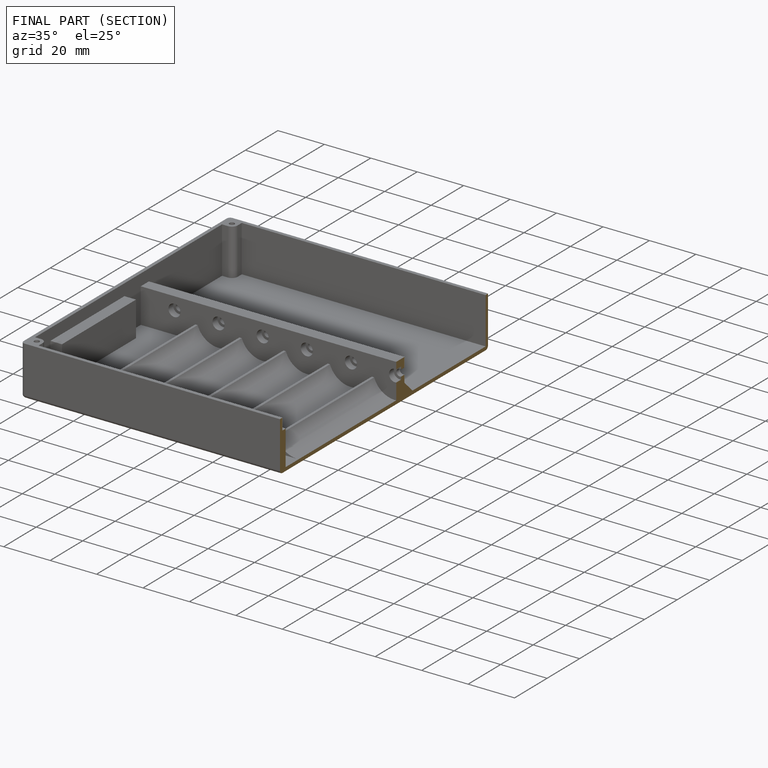
[diagram: finished part — half-section view (interior)]
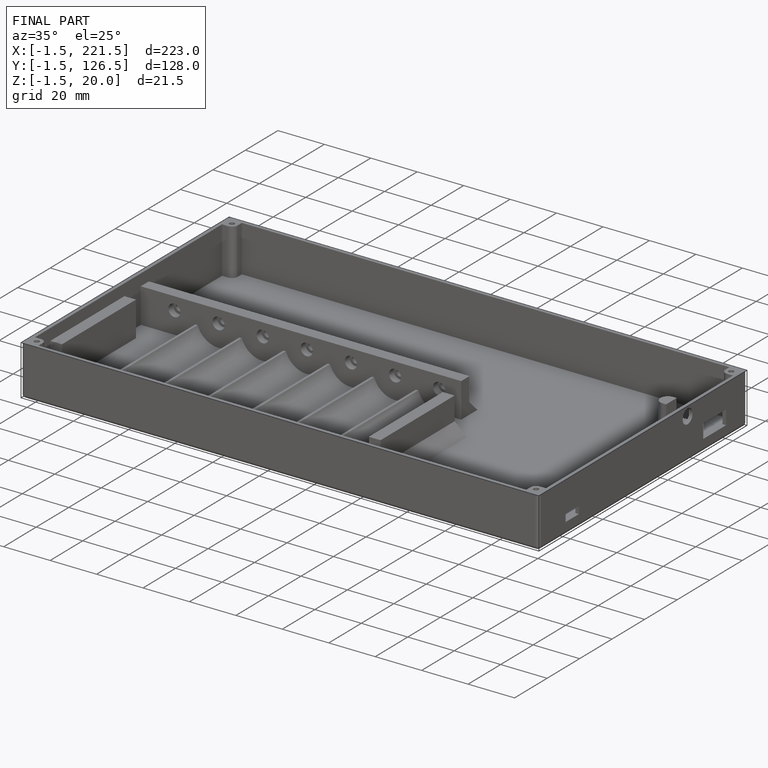
[diagram: finished part — iso view with bounding-box wireframe]
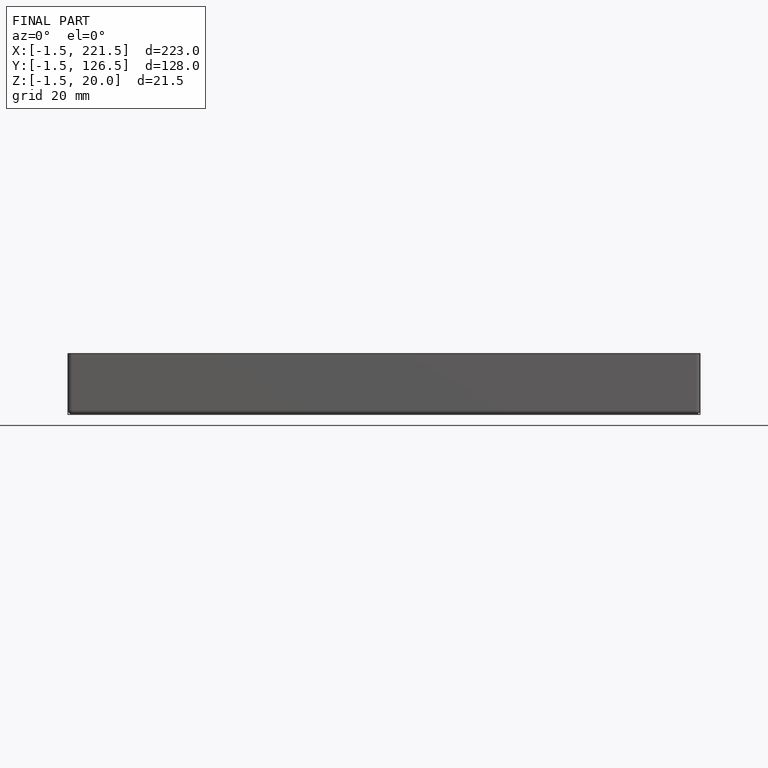
[diagram: finished part — front view with bounding-box wireframe]
